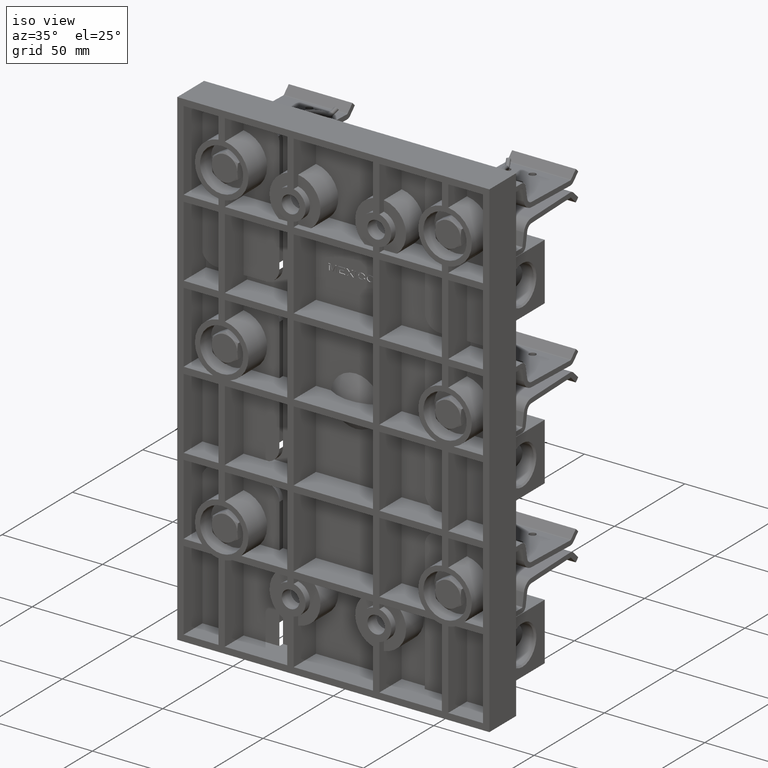
[diagram: clean part render]
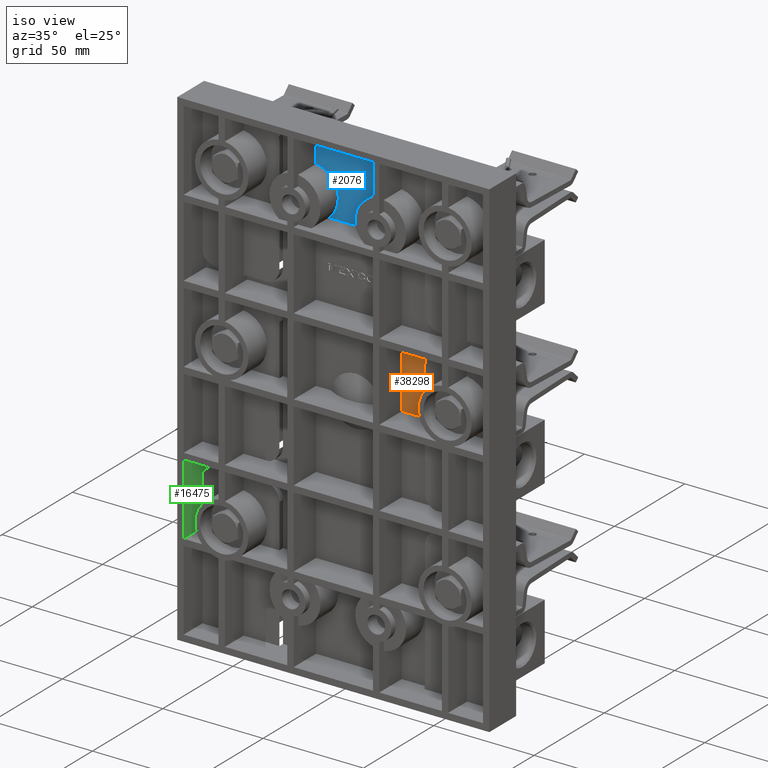
[diagram: same view with three faces highlighted in distinct colors, each labeled with its STEP entity id]
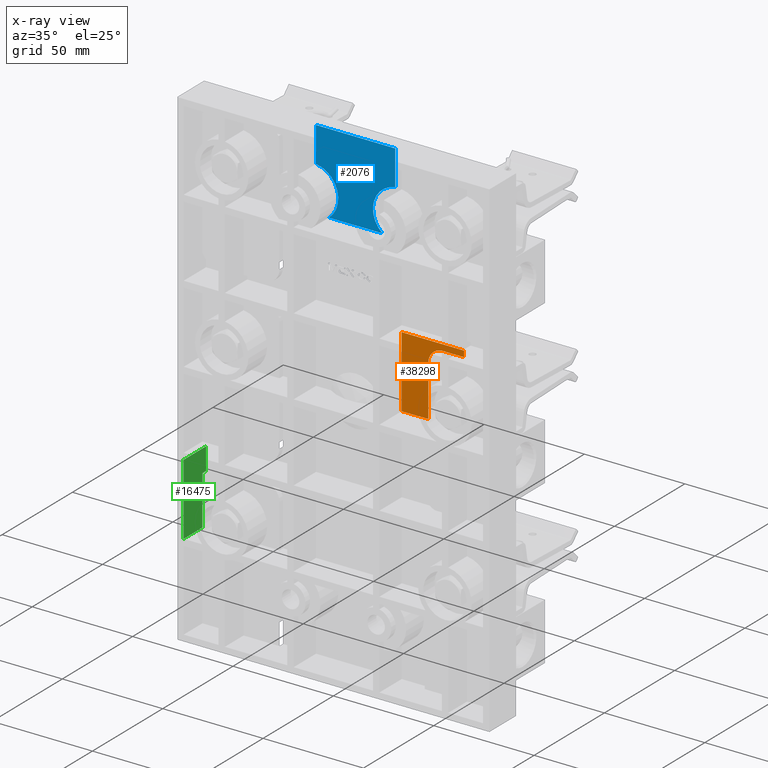
[diagram: x-ray of the same camera — body ghosted, the three highlighted faces saturated]
A machine part, iso view with three faces highlighted in distinct colors.
The next image is the same camera in x-ray (body ghosted, the three faces saturated) — at least one of them is partly hidden behind the body in this view.
Their STEP definitions:

[orange] entity #38298 — the highlighted planar face has unit normal (0, -1, 0).
#959 = CARTESIAN_POINT ( 'NONE',  ( 2.127499999999999100, 0.6250000000000000000, 1.345000000000000000 ) ) ;
#1309 = CARTESIAN_POINT ( 'NONE',  ( 0.9024999999999998600, 0.6250000000000000000, 1.462500000000000400 ) ) ;
#3017 = LINE ( 'NONE', #1309, #25201 ) ;
#6247 = DIRECTION ( 'NONE',  ( 1.000000000000000000, 0.0000000000000000000, 0.0000000000000000000 ) ) ;
#7828 = VERTEX_POINT ( 'NONE', #34400 ) ;
#8860 = EDGE_LOOP ( 'NONE', ( #40937, #48176, #34825, #48128, #11204, #19341, #42773 ) ) ;
#9639 = VERTEX_POINT ( 'NONE', #959 ) ;
#10429 = DIRECTION ( 'NONE',  ( 9.756599977372367400E-017, -0.0000000000000000000, 1.000000000000000000 ) ) ;
#11204 = ORIENTED_EDGE ( 'NONE', *, *, #21319, .T. ) ;
#14214 = CARTESIAN_POINT ( 'NONE',  ( 1.425000000000000000, 0.6250000000000000000, 0.06249999999999995100 ) ) ;
#15938 = VERTEX_POINT ( 'NONE', #38166 ) ;
#16224 = EDGE_CURVE ( 'NONE', #25686, #7828, #38801, .T. ) ;
#16490 = AXIS2_PLACEMENT_3D ( 'NONE', #50840, #24182, #55329 ) ;
#16821 = VECTOR ( 'NONE', #21239, 39.37007874015748100 ) ;
#16970 = CARTESIAN_POINT ( 'NONE',  ( 0.9024999999999999700, 0.6250000000000000000, 1.462500000000000600 ) ) ;
#17009 = LINE ( 'NONE', #51664, #22587 ) ;
#17720 = VECTOR ( 'NONE', #50874, 39.37007874015748100 ) ;
#19341 = ORIENTED_EDGE ( 'NONE', *, *, #21232, .F. ) ;
#20537 = DIRECTION ( 'NONE',  ( 1.000000000000000000, 0.0000000000000000000, -0.0000000000000000000 ) ) ;
#20908 = PLANE ( 'NONE',  #55442 ) ;
#21232 = EDGE_CURVE ( 'NONE', #15938, #9639, #29564, .T. ) ;
#21239 = DIRECTION ( 'NONE',  ( -1.000000000000000000, -0.0000000000000000000, -1.524722590146276800E-017 ) ) ;
#21287 = DIRECTION ( 'NONE',  ( 0.0000000000000000000, -1.000000000000000000, 0.0000000000000000000 ) ) ;
#21319 = EDGE_CURVE ( 'NONE', #56947, #9639, #17009, .T. ) ;
#22587 = VECTOR ( 'NONE', #20537, 39.37007874015748100 ) ;
#24182 = DIRECTION ( 'NONE',  ( -0.0000000000000000000, 1.000000000000000000, -0.0000000000000000000 ) ) ;
#25201 = VECTOR ( 'NONE', #10429, 39.37007874015748100 ) ;
#25686 = VERTEX_POINT ( 'NONE', #14214 ) ;
#28011 = VERTEX_POINT ( 'NONE', #53161 ) ;
#28638 = LINE ( 'NONE', #56657, #16821 ) ;
#29564 = LINE ( 'NONE', #41778, #17720 ) ;
#31308 = DIRECTION ( 'NONE',  ( -1.214154663850785100E-016, 0.0000000000000000000, 1.000000000000000000 ) ) ;
#33707 = FACE_OUTER_BOUND ( 'NONE', #8860, .T. ) ;
#34400 = CARTESIAN_POINT ( 'NONE',  ( 1.425000000000000000, 0.6250000000000000000, 1.059999999999997800 ) ) ;
#34825 = ORIENTED_EDGE ( 'NONE', *, *, #16224, .T. ) ;
#35105 = EDGE_CURVE ( 'NONE', #42792, #15938, #47576, .T. ) ;
#35664 = EDGE_CURVE ( 'NONE', #7828, #56947, #55766, .T. ) ;
#37424 = VECTOR ( 'NONE', #31308, 39.37007874015748100 ) ;
#38166 = CARTESIAN_POINT ( 'NONE',  ( 2.127499999999999100, 0.6250000000000000000, 1.462500000000000100 ) ) ;
#38298 = ADVANCED_FACE ( 'NONE', ( #33707 ), #20908, .T. ) ;
#38753 = EDGE_CURVE ( 'NONE', #25686, #28011, #28638, .T. ) ;
#38801 = LINE ( 'NONE', #53902, #37424 ) ;
#40937 = ORIENTED_EDGE ( 'NONE', *, *, #50723, .F. ) ;
#41778 = CARTESIAN_POINT ( 'NONE',  ( 2.127499999999999100, 0.6250000000000000000, 1.462500000000000400 ) ) ;
#42773 = ORIENTED_EDGE ( 'NONE', *, *, #35105, .F. ) ;
#42792 = VERTEX_POINT ( 'NONE', #16970 ) ;
#46193 = VECTOR ( 'NONE', #6247, 39.37007874015748100 ) ;
#47576 = LINE ( 'NONE', #50507, #46193 ) ;
#47960 = CARTESIAN_POINT ( 'NONE',  ( 3.060000000000000100, 0.6250000000000000000, 4.809999999999999600 ) ) ;
#48128 = ORIENTED_EDGE ( 'NONE', *, *, #35664, .T. ) ;
#48176 = ORIENTED_EDGE ( 'NONE', *, *, #38753, .F. ) ;
#49965 = CARTESIAN_POINT ( 'NONE',  ( 1.710000000000000900, 0.6250000000000000000, 1.345000000000000000 ) ) ;
#50507 = CARTESIAN_POINT ( 'NONE',  ( 0.9024999999999998600, 0.6250000000000000000, 1.462500000000000400 ) ) ;
#50723 = EDGE_CURVE ( 'NONE', #28011, #42792, #3017, .T. ) ;
#50840 = CARTESIAN_POINT ( 'NONE',  ( 1.709999999999999700, 0.6250000000000000000, 1.060000000000000300 ) ) ;
#50874 = DIRECTION ( 'NONE',  ( 7.165812808378153100E-016, 0.0000000000000000000, -1.000000000000000000 ) ) ;
#51664 = CARTESIAN_POINT ( 'NONE',  ( 2.669999999999998200, 0.6250000000000000000, 1.345000000000000000 ) ) ;
#52457 = DIRECTION ( 'NONE',  ( 0.0000000000000000000, -0.0000000000000000000, -1.000000000000000000 ) ) ;
#53161 = CARTESIAN_POINT ( 'NONE',  ( 0.9024999999999998600, 0.6250000000000000000, 0.06250000000000022200 ) ) ;
#53902 = CARTESIAN_POINT ( 'NONE',  ( 1.425000000000000300, 0.6250000000000000000, -1.189999999999998800 ) ) ;
#55329 = DIRECTION ( 'NONE',  ( 9.585431556716712900E-016, 0.0000000000000000000, -1.000000000000000000 ) ) ;
#55442 = AXIS2_PLACEMENT_3D ( 'NONE', #47960, #21287, #52457 ) ;
#55766 = CIRCLE ( 'NONE', #16490, 0.2849999999999999800 ) ;
#56657 = CARTESIAN_POINT ( 'NONE',  ( 0.9024999999999997500, 0.6250000000000000000, 0.06250000000000000000 ) ) ;
#56947 = VERTEX_POINT ( 'NONE', #49965 ) ;

[blue] entity #2076 — the highlighted planar face has unit normal (0, -1, 0).
#241 = ORIENTED_EDGE ( 'NONE', *, *, #50631, .T. ) ;
#1887 = CARTESIAN_POINT ( 'NONE',  ( 0.8400000000000003000, 0.6250000000000000000, 3.500000000000000000 ) ) ;
#2076 = ADVANCED_FACE ( 'NONE', ( #30477 ), #42999, .T. ) ;
#2517 = LINE ( 'NONE', #39017, #26079 ) ;
#4294 = CIRCLE ( 'NONE', #56082, 0.5000000000000001100 ) ;
#5197 = VERTEX_POINT ( 'NONE', #37276 ) ;
#6039 = VERTEX_POINT ( 'NONE', #25849 ) ;
#6384 = DIRECTION ( 'NONE',  ( 0.0000000000000000000, 0.0000000000000000000, -1.000000000000000000 ) ) ;
#7456 = CARTESIAN_POINT ( 'NONE',  ( 3.060000000000000100, 0.6250000000000000000, 4.809999999999999600 ) ) ;
#9883 = CARTESIAN_POINT ( 'NONE',  ( -0.8400000000000003000, 0.6250000000000000000, 3.500000000000000000 ) ) ;
#12402 = DIRECTION ( 'NONE',  ( -1.000000000000000000, -0.0000000000000000000, -0.0000000000000000000 ) ) ;
#14322 = DIRECTION ( 'NONE',  ( 0.0000000000000000000, 0.0000000000000000000, -1.000000000000000000 ) ) ;
#14494 = VERTEX_POINT ( 'NONE', #26011 ) ;
#15510 = LINE ( 'NONE', #31814, #27327 ) ;
#16036 = EDGE_CURVE ( 'NONE', #52298, #35228, #52094, .T. ) ;
#16546 = VECTOR ( 'NONE', #47884, 39.37007874015748100 ) ;
#16804 = EDGE_CURVE ( 'NONE', #43108, #5197, #30989, .T. ) ;
#21994 = EDGE_CURVE ( 'NONE', #43108, #14494, #55819, .T. ) ;
#24287 = CARTESIAN_POINT ( 'NONE',  ( -0.7775000000000004100, 0.6250000000000000000, 3.996078370824610800 ) ) ;
#24822 = ORIENTED_EDGE ( 'NONE', *, *, #27188, .F. ) ;
#25226 = CARTESIAN_POINT ( 'NONE',  ( -0.7775000000000004100, 0.6250000000000000000, 4.684999999999999600 ) ) ;
#25849 = CARTESIAN_POINT ( 'NONE',  ( 0.5241988940900909100, 0.6250000000000000000, 3.112353690194169100 ) ) ;
#26011 = CARTESIAN_POINT ( 'NONE',  ( -0.7775000000000006400, 0.6250000000000000000, 4.684999999999999600 ) ) ;
#26079 = VECTOR ( 'NONE', #12402, 39.37007874015748100 ) ;
#27188 = EDGE_CURVE ( 'NONE', #6039, #5197, #2517, .T. ) ;
#27327 = VECTOR ( 'NONE', #36316, 39.37007874015748100 ) ;
#28783 = AXIS2_PLACEMENT_3D ( 'NONE', #9883, #40987, #14322 ) ;
#29239 = ORIENTED_EDGE ( 'NONE', *, *, #21994, .F. ) ;
#29737 = DIRECTION ( 'NONE',  ( -0.0000000000000000000, -0.0000000000000000000, 1.000000000000000000 ) ) ;
#30477 = FACE_OUTER_BOUND ( 'NONE', #53828, .T. ) ;
#30928 = DIRECTION ( 'NONE',  ( 0.0000000000000000000, -1.000000000000000000, 0.0000000000000000000 ) ) ;
#30989 = CIRCLE ( 'NONE', #28783, 0.5000000000000001100 ) ;
#31814 = CARTESIAN_POINT ( 'NONE',  ( 3.060000000000000100, 0.6250000000000000000, 4.684999999999999600 ) ) ;
#32965 = DIRECTION ( 'NONE',  ( -0.0000000000000000000, 1.000000000000000000, -0.0000000000000000000 ) ) ;
#33407 = CARTESIAN_POINT ( 'NONE',  ( 0.7775000000000004100, 0.6250000000000000000, 3.996078370824610800 ) ) ;
#35185 = CARTESIAN_POINT ( 'NONE',  ( 0.7775000000000004100, 0.6250000000000000000, 4.684999999999999600 ) ) ;
#35228 = VERTEX_POINT ( 'NONE', #33407 ) ;
#36316 = DIRECTION ( 'NONE',  ( -1.000000000000000000, 0.0000000000000000000, 0.0000000000000000000 ) ) ;
#37276 = CARTESIAN_POINT ( 'NONE',  ( -0.5241988940900909100, 0.6250000000000000000, 3.112353690194169100 ) ) ;
#38219 = AXIS2_PLACEMENT_3D ( 'NONE', #7456, #30928, #57557 ) ;
#39017 = CARTESIAN_POINT ( 'NONE',  ( -0.5241988940900906800, 0.6250000000000000000, 3.112353690194169100 ) ) ;
#39780 = ORIENTED_EDGE ( 'NONE', *, *, #16036, .F. ) ;
#40987 = DIRECTION ( 'NONE',  ( -0.0000000000000000000, 1.000000000000000000, -0.0000000000000000000 ) ) ;
#42999 = PLANE ( 'NONE',  #38219 ) ;
#43108 = VERTEX_POINT ( 'NONE', #24287 ) ;
#43423 = CARTESIAN_POINT ( 'NONE',  ( 0.7775000000000004100, 0.6250000000000000000, 4.684999999999999600 ) ) ;
#44317 = EDGE_CURVE ( 'NONE', #6039, #35228, #4294, .T. ) ;
#45420 = VECTOR ( 'NONE', #29737, 39.37007874015748100 ) ;
#45749 = ORIENTED_EDGE ( 'NONE', *, *, #16804, .T. ) ;
#47884 = DIRECTION ( 'NONE',  ( 0.0000000000000000000, 0.0000000000000000000, -1.000000000000000000 ) ) ;
#50631 = EDGE_CURVE ( 'NONE', #52298, #14494, #15510, .T. ) ;
#52094 = LINE ( 'NONE', #43423, #16546 ) ;
#52298 = VERTEX_POINT ( 'NONE', #35185 ) ;
#53828 = EDGE_LOOP ( 'NONE', ( #241, #29239, #45749, #24822, #56751, #39780 ) ) ;
#55819 = LINE ( 'NONE', #25226, #45420 ) ;
#56082 = AXIS2_PLACEMENT_3D ( 'NONE', #1887, #32965, #6384 ) ;
#56751 = ORIENTED_EDGE ( 'NONE', *, *, #44317, .T. ) ;
#57557 = DIRECTION ( 'NONE',  ( 0.0000000000000000000, -0.0000000000000000000, -1.000000000000000000 ) ) ;

[green] entity #16475 — the highlighted planar face has unit normal (-1, 0, 0).
#8 = CARTESIAN_POINT ( 'NONE',  ( -2.935000000000000100, 0.5250000000000000200, -2.025119115182985900 ) ) ;
#476 = EDGE_CURVE ( 'NONE', #21933, #23866, #35011, .T. ) ;
#531 = VERTEX_POINT ( 'NONE', #17366 ) ;
#929 = VECTOR ( 'NONE', #10576, 39.37007874015748100 ) ;
#6598 = LINE ( 'NONE', #17088, #40642 ) ;
#6692 = CARTESIAN_POINT ( 'NONE',  ( -2.935000000000000100, -8.640965624524961100, -1.587500000000000100 ) ) ;
#6993 = ORIENTED_EDGE ( 'NONE', *, *, #10668, .T. ) ;
#8176 = ORIENTED_EDGE ( 'NONE', *, *, #23718, .F. ) ;
#9023 = LINE ( 'NONE', #6692, #32642 ) ;
#9083 = ORIENTED_EDGE ( 'NONE', *, *, #13462, .T. ) ;
#10576 = DIRECTION ( 'NONE',  ( 0.0000000000000000000, 0.0000000000000000000, 1.000000000000000000 ) ) ;
#10668 = EDGE_CURVE ( 'NONE', #53609, #21933, #6598, .T. ) ;
#11474 = DIRECTION ( 'NONE',  ( -0.0000000000000000000, 1.000000000000000000, -0.0000000000000000000 ) ) ;
#13462 = EDGE_CURVE ( 'NONE', #52885, #49943, #56191, .T. ) ;
#13740 = VECTOR ( 'NONE', #31717, 39.37007874015748100 ) ;
#14263 = DIRECTION ( 'NONE',  ( -0.0000000000000000000, 1.000000000000000000, -0.0000000000000000000 ) ) ;
#16229 = EDGE_CURVE ( 'NONE', #531, #53609, #49233, .T. ) ;
#16475 = ADVANCED_FACE ( 'NONE', ( #46405 ), #51312, .F. ) ;
#16820 = DIRECTION ( 'NONE',  ( 0.0000000000000000000, 0.0000000000000000000, -1.000000000000000000 ) ) ;
#17088 = CARTESIAN_POINT ( 'NONE',  ( -2.935000000000000100, 0.6500000000000000200, -2.025119115182985900 ) ) ;
#17366 = CARTESIAN_POINT ( 'NONE',  ( -2.935000000000000100, 0.5250000000000000200, -2.987353690194169100 ) ) ;
#20381 = CARTESIAN_POINT ( 'NONE',  ( -2.935000000000000100, 0.7500000000000001100, 4.809999999999999600 ) ) ;
#21149 = CARTESIAN_POINT ( 'NONE',  ( -2.935000000000000100, 0.6250000000000000000, -1.587499999999998800 ) ) ;
#21933 = VERTEX_POINT ( 'NONE', #47918 ) ;
#22556 = CARTESIAN_POINT ( 'NONE',  ( -2.935000000000000100, 0.5250000000000000200, 4.809999999999999600 ) ) ;
#23262 = ORIENTED_EDGE ( 'NONE', *, *, #476, .T. ) ;
#23718 = EDGE_CURVE ( 'NONE', #52885, #23866, #9023, .T. ) ;
#23866 = VERTEX_POINT ( 'NONE', #21149 ) ;
#24807 = DIRECTION ( 'NONE',  ( 0.0000000000000000000, 0.0000000000000000000, 1.000000000000000000 ) ) ;
#24952 = ORIENTED_EDGE ( 'NONE', *, *, #49637, .T. ) ;
#25552 = CARTESIAN_POINT ( 'NONE',  ( -2.935000000000000100, 0.0000000000000000000, 4.809999999999999600 ) ) ;
#27381 = EDGE_LOOP ( 'NONE', ( #24952, #46011, #6993, #23262, #8176, #9083 ) ) ;
#27640 = CARTESIAN_POINT ( 'NONE',  ( -2.935000000000000100, -8.640965624524961100, -2.987353690194169100 ) ) ;
#31138 = VECTOR ( 'NONE', #14263, 39.37007874015748100 ) ;
#31717 = DIRECTION ( 'NONE',  ( 0.0000000000000000000, 0.0000000000000000000, 1.000000000000000000 ) ) ;
#32642 = VECTOR ( 'NONE', #11474, 39.37007874015748100 ) ;
#33769 = CARTESIAN_POINT ( 'NONE',  ( -2.935000000000000100, 0.6250000000000000000, 4.809999999999999600 ) ) ;
#34030 = AXIS2_PLACEMENT_3D ( 'NONE', #20381, #51507, #24807 ) ;
#34104 = CARTESIAN_POINT ( 'NONE',  ( -2.935000000000000100, 0.0000000000000000000, -1.587499999999999900 ) ) ;
#35011 = LINE ( 'NONE', #33769, #929 ) ;
#40642 = VECTOR ( 'NONE', #48223, 39.37007874015748100 ) ;
#44387 = VECTOR ( 'NONE', #16820, 39.37007874015748100 ) ;
#46011 = ORIENTED_EDGE ( 'NONE', *, *, #16229, .T. ) ;
#46405 = FACE_OUTER_BOUND ( 'NONE', #27381, .T. ) ;
#47918 = CARTESIAN_POINT ( 'NONE',  ( -2.935000000000000100, 0.6250000000000000000, -2.025119115182985500 ) ) ;
#48223 = DIRECTION ( 'NONE',  ( -0.0000000000000000000, 1.000000000000000000, -0.0000000000000000000 ) ) ;
#49233 = LINE ( 'NONE', #22556, #13740 ) ;
#49637 = EDGE_CURVE ( 'NONE', #49943, #531, #53422, .T. ) ;
#49943 = VERTEX_POINT ( 'NONE', #57161 ) ;
#51312 = PLANE ( 'NONE',  #34030 ) ;
#51507 = DIRECTION ( 'NONE',  ( -1.000000000000000000, 0.0000000000000000000, 0.0000000000000000000 ) ) ;
#52885 = VERTEX_POINT ( 'NONE', #34104 ) ;
#53422 = LINE ( 'NONE', #27640, #31138 ) ;
#53609 = VERTEX_POINT ( 'NONE', #8 ) ;
#56191 = LINE ( 'NONE', #25552, #44387 ) ;
#57161 = CARTESIAN_POINT ( 'NONE',  ( -2.935000000000000100, 0.0000000000000000000, -2.987353690194169100 ) ) ;